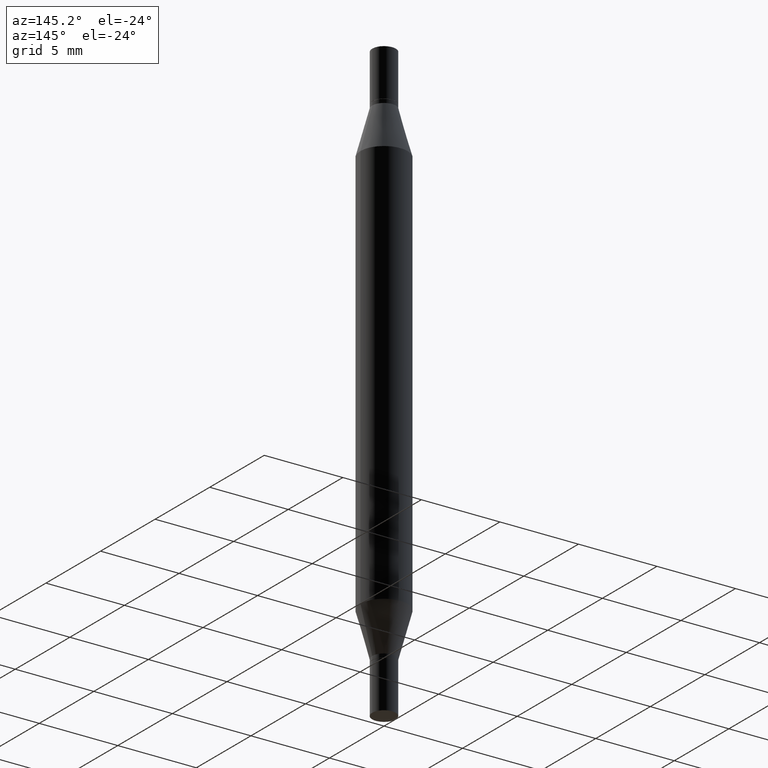
[diagram: clean part render]
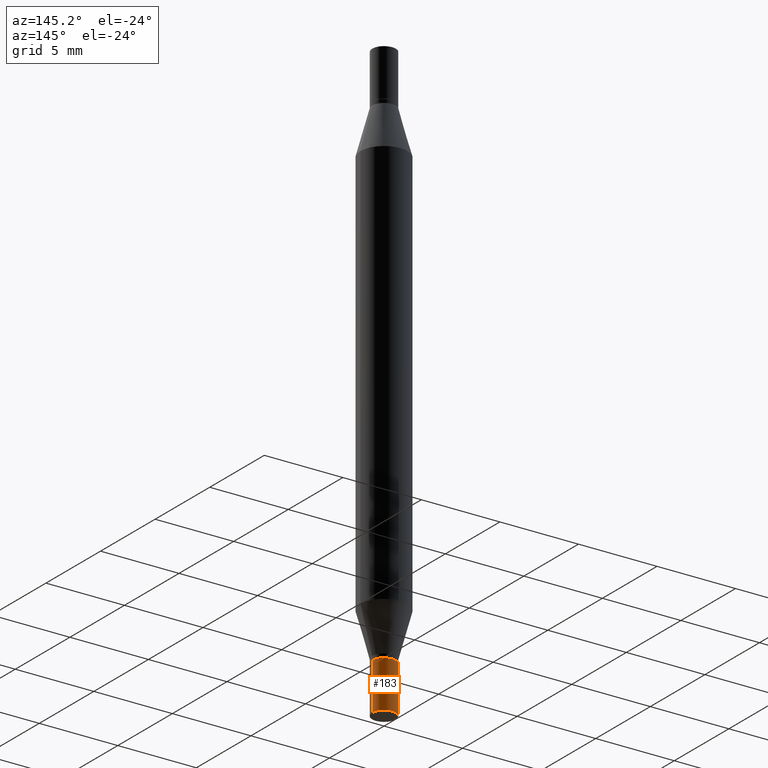
[diagram: same view with one face highlighted and labeled with its STEP entity id]
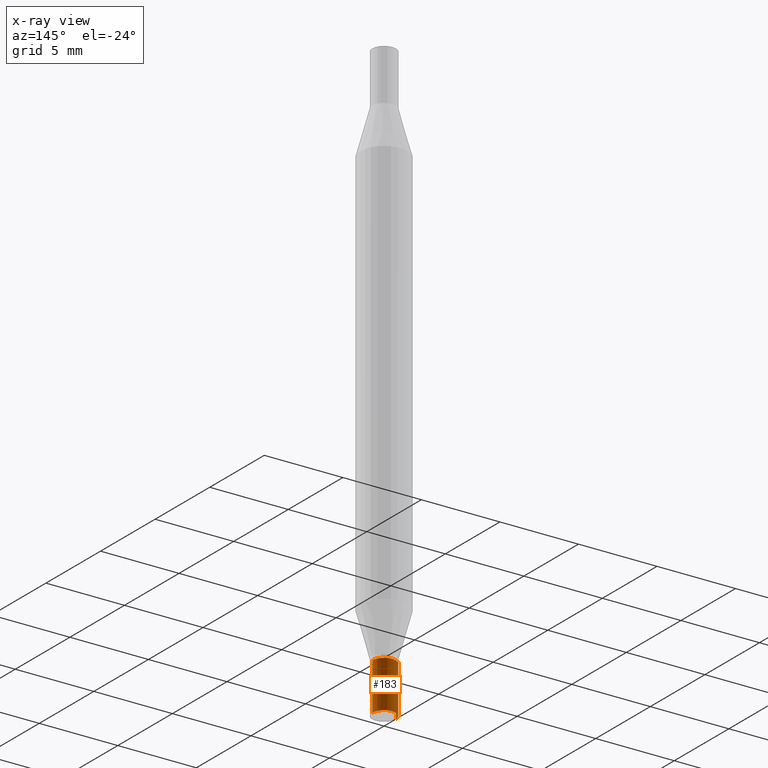
[diagram: x-ray of the same camera — body ghosted, the highlighted face saturated]
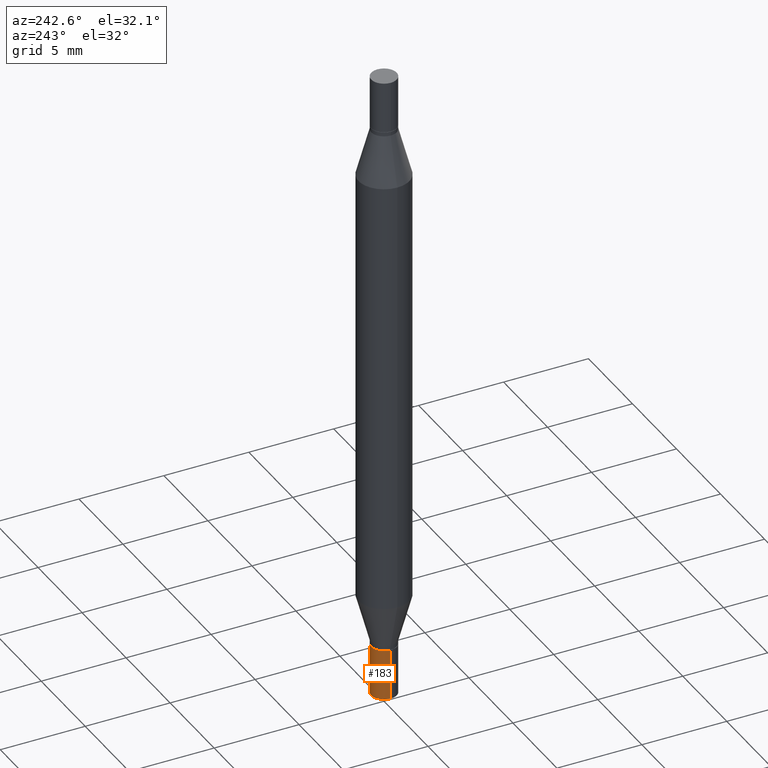
[diagram: same view with one face highlighted and labeled with its STEP entity id]
A machine part, auxiliary view. The second image highlights one B-rep face of the part: STEP entity #183.
The next image is the same camera in x-ray: the body ghosted, the highlighted face saturated — about 0% of this face is hidden behind the body in this view.
A second angle (auxiliary view) of the same face is appended — the face is thin or edge-on in the first view.
In plain terms, the highlighted cylindrical surface (edge-blend (fillet) strip) has radius 0.7506 mm, axis along (-0, 0, 1).
Its self-contained STEP definition (entity closure, byte-faithful):
#40 = DIRECTION ( 'NONE',  ( 1.000000000000000000, -6.982962677686261977E-15, 0.000000000000000000 ) ) ;
#42 = AXIS2_PLACEMENT_3D ( 'NONE', #204, #666, #40 ) ;
#54 = ORIENTED_EDGE ( 'NONE', *, *, #370, .T. ) ;
#55 = CARTESIAN_POINT ( 'NONE',  ( 0.000000000000000000, 0.000000000000000000, 0.000000000000000000 ) ) ;
#68 = CARTESIAN_POINT ( 'NONE',  ( 0.02954999999999999988, -5.429951778168858482E-15, -1.496099999999999985 ) ) ;
#81 = CARTESIAN_POINT ( 'NONE',  ( -0.02954999999999999988, 2.099653784171096041E-16, -1.453545319170324550E-30 ) ) ;
#127 = VERTEX_POINT ( 'NONE', #130 ) ;
#130 = CARTESIAN_POINT ( 'NONE',  ( -0.02954999999999999988, -4.807467879567433237E-15, -1.377999999999999892 ) ) ;
#139 = EDGE_CURVE ( 'NONE', #412, #895, #928, .T. ) ;
#183 = ADVANCED_FACE ( 'NONE', ( #644 ), #210, .T. ) ;
#204 = CARTESIAN_POINT ( 'NONE',  ( 3.658665880933582389E-29, -5.223605231043229660E-15, -1.496099999999999985 ) ) ;
#210 = CYLINDRICAL_SURFACE ( 'NONE', #271, 0.02954999999999999988 ) ;
#268 = VECTOR ( 'NONE', #704, 39.37007874015748143 ) ;
#271 = AXIS2_PLACEMENT_3D ( 'NONE', #55, #949, #361 ) ;
#313 = DIRECTION ( 'NONE',  ( -2.445468806185136877E-29, 3.491481338843145188E-15, 1.000000000000000000 ) ) ;
#330 = EDGE_CURVE ( 'NONE', #412, #442, #926, .T. ) ;
#349 = ORIENTED_EDGE ( 'NONE', *, *, #520, .F. ) ;
#361 = DIRECTION ( 'NONE',  ( 1.000000000000000000, -6.982962677686266711E-15, 4.876176775795935793E-29 ) ) ;
#370 = EDGE_CURVE ( 'NONE', #895, #127, #761, .T. ) ;
#412 = VERTEX_POINT ( 'NONE', #68 ) ;
#442 = VERTEX_POINT ( 'NONE', #940 ) ;
#463 = CARTESIAN_POINT ( 'NONE',  ( 0.02954999999999999988, -2.063465471256291914E-16, 1.440910237247699070E-30 ) ) ;
#493 = CARTESIAN_POINT ( 'NONE',  ( 3.369856014923117948E-29, -4.811261284925853951E-15, -1.377999999999999892 ) ) ;
#520 = EDGE_CURVE ( 'NONE', #442, #127, #787, .T. ) ;
#628 = DIRECTION ( 'NONE',  ( -2.445468806185136597E-29, 3.491481338843145583E-15, 1.000000000000000000 ) ) ;
#644 = FACE_OUTER_BOUND ( 'NONE', #862, .T. ) ;
#666 = DIRECTION ( 'NONE',  ( -2.445468806185136597E-29, 3.491481338843145583E-15, 1.000000000000000000 ) ) ;
#704 = DIRECTION ( 'NONE',  ( -2.445468806185136877E-29, 3.491481338843145188E-15, 1.000000000000000000 ) ) ;
#752 = ORIENTED_EDGE ( 'NONE', *, *, #139, .T. ) ;
#761 = LINE ( 'NONE', #81, #268 ) ;
#787 = CIRCLE ( 'NONE', #858, 0.02954999999999999988 ) ;
#839 = VECTOR ( 'NONE', #313, 39.37007874015748143 ) ;
#858 = AXIS2_PLACEMENT_3D ( 'NONE', #493, #628, #932 ) ;
#862 = EDGE_LOOP ( 'NONE', ( #752, #54, #349, #963 ) ) ;
#870 = CARTESIAN_POINT ( 'NONE',  ( -0.02954999999999999988, -4.807467879567433237E-15, -1.496099999999999985 ) ) ;
#895 = VERTEX_POINT ( 'NONE', #870 ) ;
#926 = LINE ( 'NONE', #463, #839 ) ;
#928 = CIRCLE ( 'NONE', #42, 0.02954999999999999988 ) ;
#932 = DIRECTION ( 'NONE',  ( 1.000000000000000000, -6.982962677686261977E-15, 0.000000000000000000 ) ) ;
#940 = CARTESIAN_POINT ( 'NONE',  ( 0.02954999999999999988, -5.017607832051483561E-15, -1.377999999999999892 ) ) ;
#949 = DIRECTION ( 'NONE',  ( -2.445468806185136597E-29, 3.491481338843145583E-15, 1.000000000000000000 ) ) ;
#963 = ORIENTED_EDGE ( 'NONE', *, *, #330, .F. ) ;